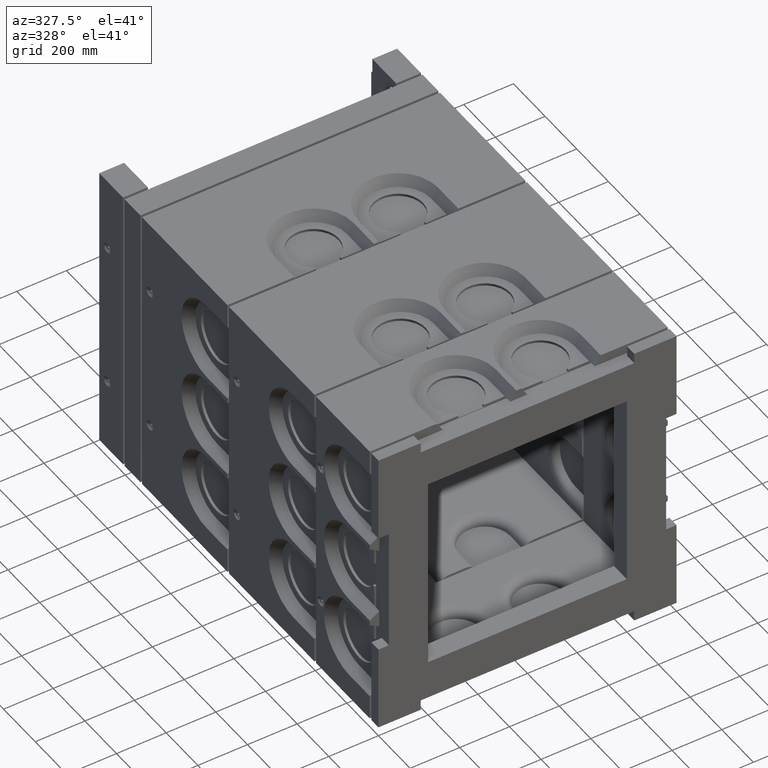
[diagram: clean part render]
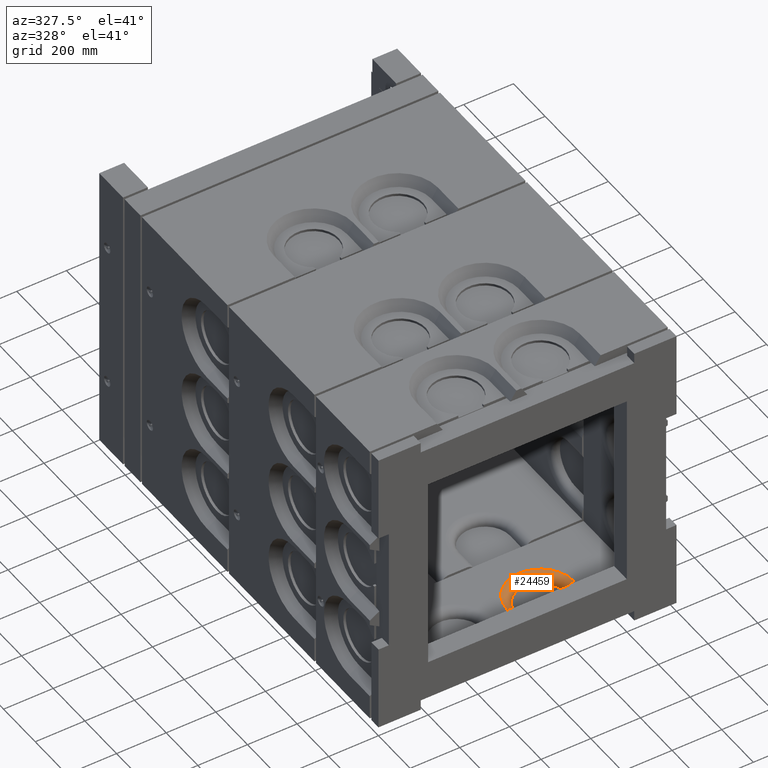
[diagram: same view with one face highlighted and labeled with its STEP entity id]
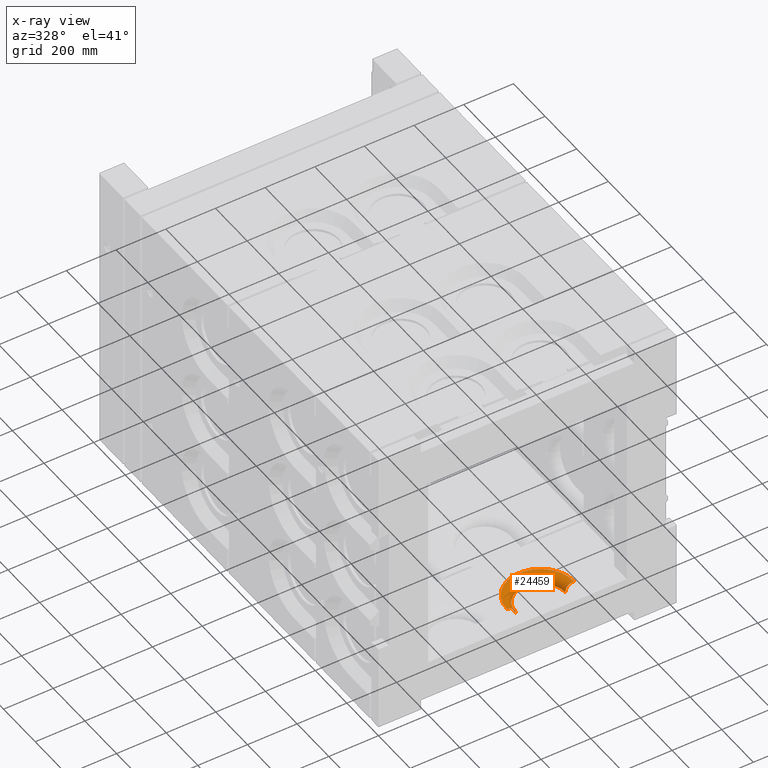
[diagram: x-ray of the same camera — body ghosted, the highlighted face saturated]
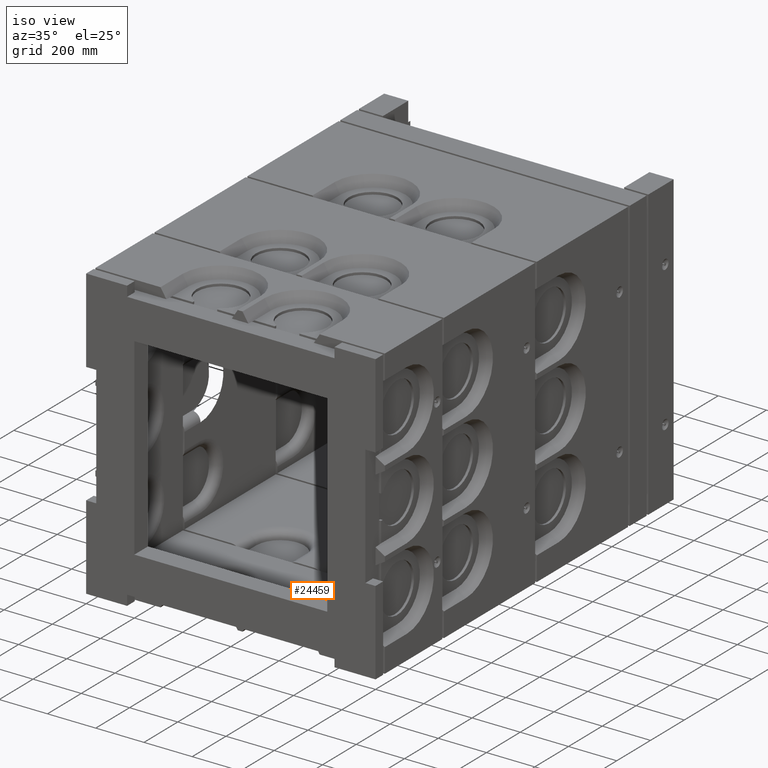
[diagram: same view with one face highlighted and labeled with its STEP entity id]
A machine part, auxiliary view. The second image highlights one B-rep face of the part: STEP entity #24459.
The next image is the same camera in x-ray: the body ghosted, the highlighted face saturated — about 0% of this face is hidden behind the body in this view.
A second angle (iso view) of the same face is appended — the face is thin or edge-on in the first view.
In plain terms, the highlighted toroidal blend (fillet) surface has major radius 135 mm and minor (blend) radius 35 mm.
Its self-contained STEP definition (entity closure, byte-faithful):
#385 = DIRECTION ( 'NONE',  ( 0.0000000000000000000, 1.000000000000000000, 0.0000000000000000000 ) ) ;
#858 = CIRCLE ( 'NONE', #35813, 135.0000000000000000 ) ;
#1252 = CIRCLE ( 'NONE', #27755, 100.0000000000000142 ) ;
#1796 = VERTEX_POINT ( 'NONE', #29197 ) ;
#2940 = AXIS2_PLACEMENT_3D ( 'NONE', #15903, #40729, #44985 ) ;
#3053 = EDGE_CURVE ( 'NONE', #19251, #1796, #11003, .T. ) ;
#3429 = DIRECTION ( 'NONE',  ( 1.000000000000000000, 0.0000000000000000000, 0.0000000000000000000 ) ) ;
#3945 = DIRECTION ( 'NONE',  ( 1.000000000000000000, 0.0000000000000000000, 0.0000000000000000000 ) ) ;
#4261 = CARTESIAN_POINT ( 'NONE',  ( 34.99999999999992184, 185.0000000000000000, -534.9999999999998863 ) ) ;
#7391 = CARTESIAN_POINT ( 'NONE',  ( 69.99999999999995737, 185.0000000000000000, -534.9999999999998863 ) ) ;
#7496 = FACE_OUTER_BOUND ( 'NONE', #22924, .T. ) ;
#11003 = CIRCLE ( 'NONE', #2940, 34.99999999999997868 ) ;
#12388 = CARTESIAN_POINT ( 'NONE',  ( 305.0000000000000000, 185.0000000000000000, -500.0000000000000000 ) ) ;
#14455 = DIRECTION ( 'NONE',  ( 0.0000000000000000000, 0.0000000000000000000, 1.000000000000000000 ) ) ;
#14769 = DIRECTION ( 'NONE',  ( -1.000000000000000000, 0.0000000000000000000, 0.0000000000000000000 ) ) ;
#15066 = VERTEX_POINT ( 'NONE', #7391 ) ;
#15312 = CIRCLE ( 'NONE', #42486, 35.00000000000000000 ) ;
#15903 = CARTESIAN_POINT ( 'NONE',  ( 305.0000000000000000, 185.0000000000000000, -534.9999999999998863 ) ) ;
#16938 = VERTEX_POINT ( 'NONE', #26633 ) ;
#17435 = ORIENTED_EDGE ( 'NONE', *, *, #39783, .T. ) ;
#19251 = VERTEX_POINT ( 'NONE', #12388 ) ;
#19797 = EDGE_CURVE ( 'NONE', #16938, #19251, #858, .T. ) ;
#21468 = DIRECTION ( 'NONE',  ( 0.0000000000000000000, 0.0000000000000000000, -1.000000000000000000 ) ) ;
#21771 = CARTESIAN_POINT ( 'NONE',  ( 169.9999999999999716, 185.0000000000000000, -534.9999999999998863 ) ) ;
#22924 = EDGE_LOOP ( 'NONE', ( #42915, #17435, #26462, #31257 ) ) ;
#24459 = ADVANCED_FACE ( 'NONE', ( #7496 ), #35840, .T. ) ;
#26462 = ORIENTED_EDGE ( 'NONE', *, *, #3053, .F. ) ;
#26633 = CARTESIAN_POINT ( 'NONE',  ( 34.99999999999992184, 185.0000000000000000, -500.0000000000000000 ) ) ;
#27755 = AXIS2_PLACEMENT_3D ( 'NONE', #21771, #21468, #14769 ) ;
#29197 = CARTESIAN_POINT ( 'NONE',  ( 270.0000000000000000, 185.0000000000000000, -534.9999999999998863 ) ) ;
#31257 = ORIENTED_EDGE ( 'NONE', *, *, #19797, .F. ) ;
#34704 = CARTESIAN_POINT ( 'NONE',  ( 169.9999999999999716, 185.0000000000000000, -500.0000000000000000 ) ) ;
#35813 = AXIS2_PLACEMENT_3D ( 'NONE', #34704, #38380, #45000 ) ;
#35840 = TOROIDAL_SURFACE ( 'NONE', #39332, 135.0000000000000000, 35.00000000000000000 ) ;
#38380 = DIRECTION ( 'NONE',  ( -0.0000000000000000000, -0.0000000000000000000, -1.000000000000000000 ) ) ;
#39332 = AXIS2_PLACEMENT_3D ( 'NONE', #45766, #14455, #3429 ) ;
#39783 = EDGE_CURVE ( 'NONE', #15066, #1796, #1252, .T. ) ;
#40729 = DIRECTION ( 'NONE',  ( -0.0000000000000000000, -1.000000000000000000, 0.0000000000000000000 ) ) ;
#42486 = AXIS2_PLACEMENT_3D ( 'NONE', #4261, #385, #3945 ) ;
#42915 = ORIENTED_EDGE ( 'NONE', *, *, #43238, .T. ) ;
#43238 = EDGE_CURVE ( 'NONE', #16938, #15066, #15312, .T. ) ;
#44985 = DIRECTION ( 'NONE',  ( -1.000000000000000000, 0.0000000000000000000, 0.0000000000000000000 ) ) ;
#45000 = DIRECTION ( 'NONE',  ( 1.000000000000000000, 0.0000000000000000000, 0.0000000000000000000 ) ) ;
#45766 = CARTESIAN_POINT ( 'NONE',  ( 169.9999999999999716, 185.0000000000000000, -534.9999999999998863 ) ) ;